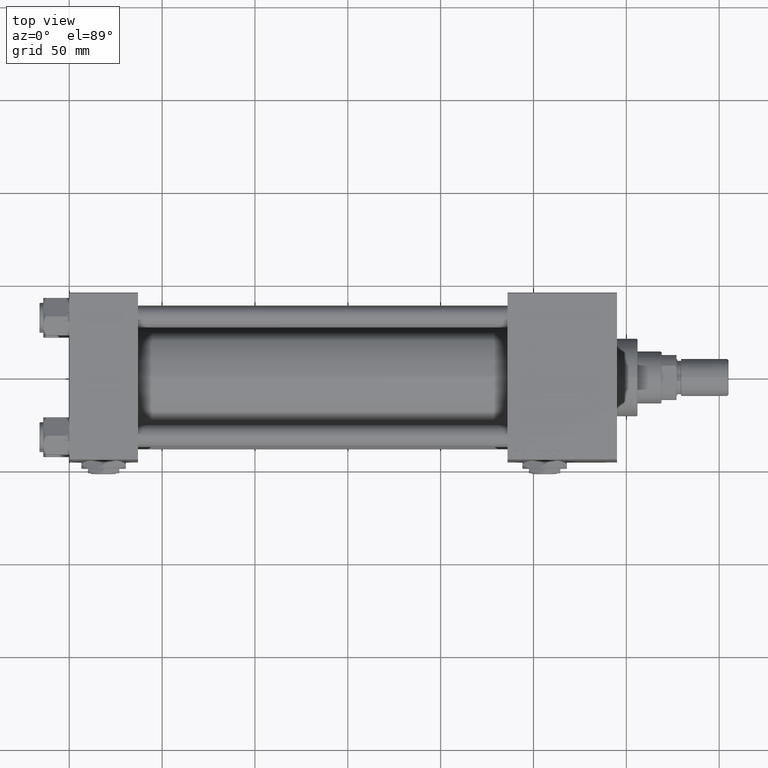
[diagram: clean part render]
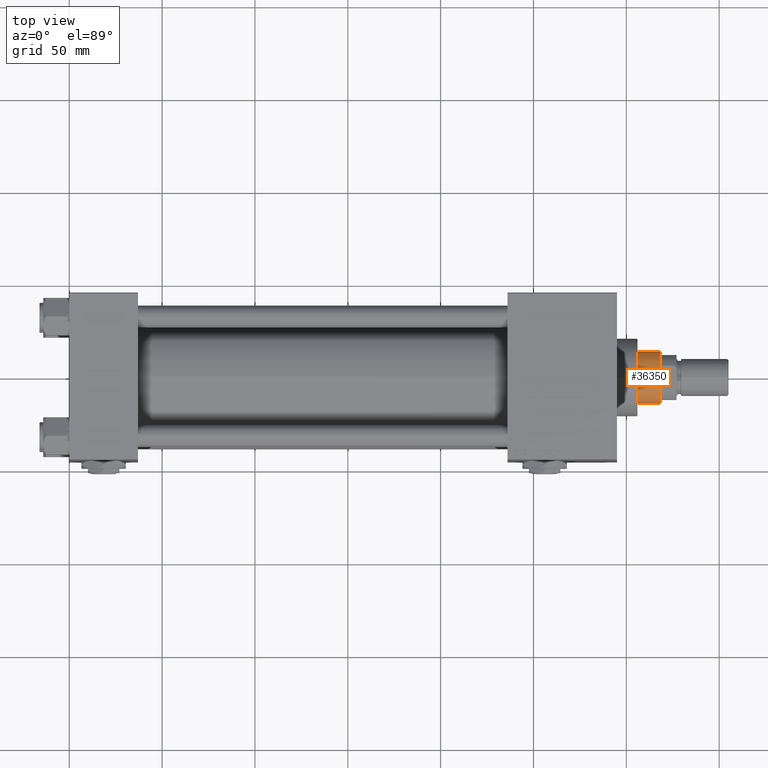
[diagram: same view with one face highlighted and labeled with its STEP entity id]
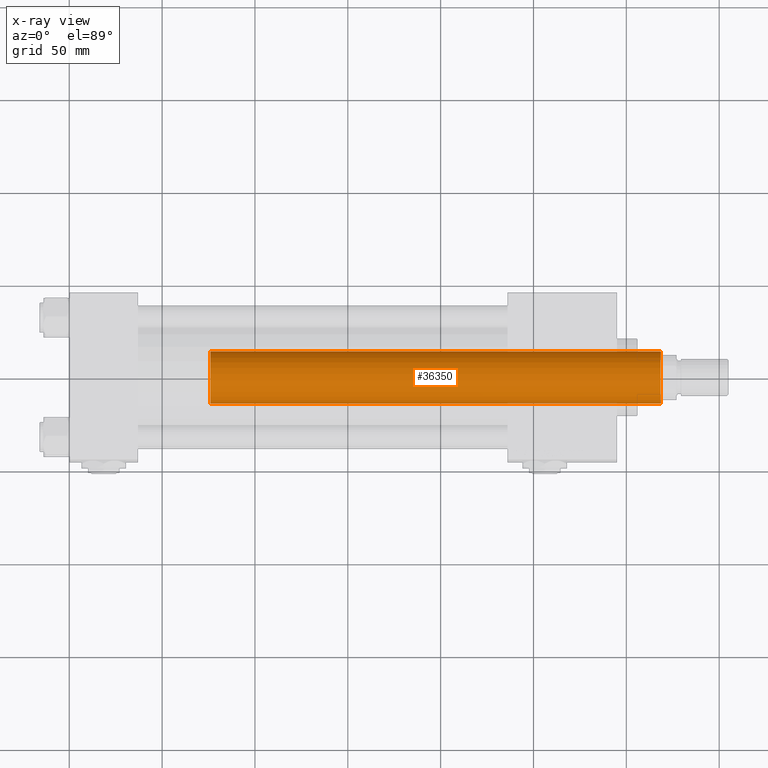
[diagram: x-ray of the same camera — body ghosted, the highlighted face saturated]
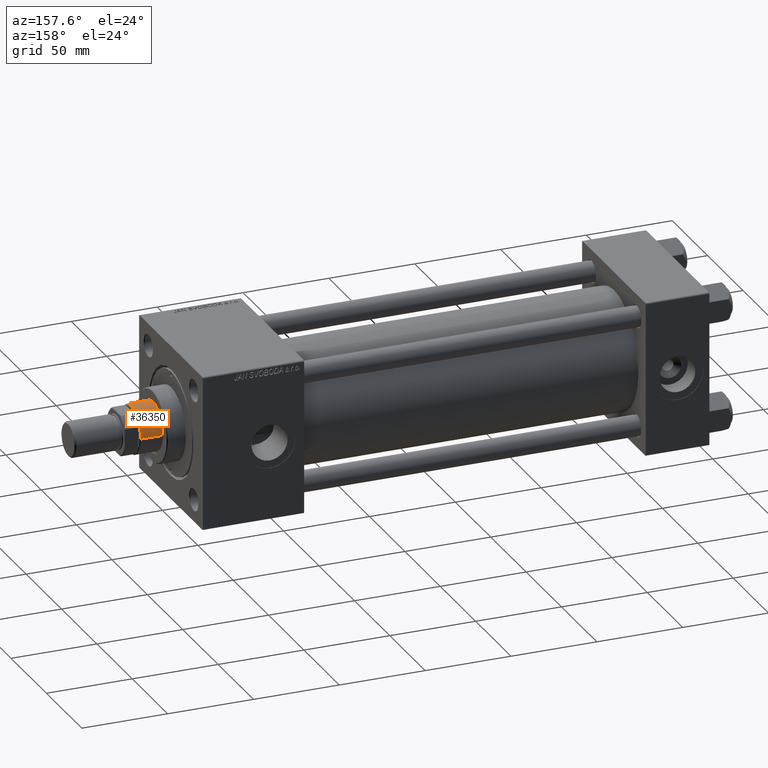
[diagram: same view with one face highlighted and labeled with its STEP entity id]
A machine part, top view. The second image highlights one B-rep face of the part: STEP entity #36350.
The next image is the same camera in x-ray: the body ghosted, the highlighted face saturated — about 1% of this face is hidden behind the body in this view.
A second angle (auxiliary view) of the same face is appended — the face is thin or edge-on in the first view.
In plain terms, the highlighted cylindrical surface (edge-blend (fillet) strip) has radius 14 mm, axis along (-1, 0, 0).
Its self-contained STEP definition (entity closure, byte-faithful):
#512 = CARTESIAN_POINT ( 'NONE',  ( 0.000000000000000000, 0.000000000000000000, 281.4999999999999432 ) ) ;
#3264 = DIRECTION ( 'NONE',  ( 0.000000000000000000, 0.000000000000000000, 1.000000000000000000 ) ) ;
#5314 = ORIENTED_EDGE ( 'NONE', *, *, #34346, .F. ) ;
#6819 = CIRCLE ( 'NONE', #52105, 14.00000000000000178 ) ;
#8891 = VECTOR ( 'NONE', #48813, 1000.000000000000000 ) ;
#9325 = DIRECTION ( 'NONE',  ( 1.000000000000000000, 0.000000000000000000, 0.000000000000000000 ) ) ;
#9505 = VERTEX_POINT ( 'NONE', #30024 ) ;
#11080 = VERTEX_POINT ( 'NONE', #28335 ) ;
#12444 = CARTESIAN_POINT ( 'NONE',  ( 14.00000000000000178, 1.714505518806294835E-15, 282.0000000000000000 ) ) ;
#13857 = EDGE_LOOP ( 'NONE', ( #5314, #30660, #21321, #25159 ) ) ;
#13990 = VECTOR ( 'NONE', #29700, 1000.000000000000000 ) ;
#16203 = LINE ( 'NONE', #12444, #8891 ) ;
#16455 = LINE ( 'NONE', #32233, #13990 ) ;
#16525 = CARTESIAN_POINT ( 'NONE',  ( 0.000000000000000000, 0.000000000000000000, 282.0000000000000000 ) ) ;
#16528 = CARTESIAN_POINT ( 'NONE',  ( 14.00000000000000178, 1.714505518806294835E-15, 39.00000000000000000 ) ) ;
#19608 = DIRECTION ( 'NONE',  ( 1.000000000000000000, 0.000000000000000000, 0.000000000000000000 ) ) ;
#21321 = ORIENTED_EDGE ( 'NONE', *, *, #33441, .T. ) ;
#22671 = AXIS2_PLACEMENT_3D ( 'NONE', #47410, #3264, #19608 ) ;
#25159 = ORIENTED_EDGE ( 'NONE', *, *, #36755, .T. ) ;
#28335 = CARTESIAN_POINT ( 'NONE',  ( -14.00000000000000178, 0.000000000000000000, 281.4999999999999432 ) ) ;
#29700 = DIRECTION ( 'NONE',  ( -0.000000000000000000, -0.000000000000000000, -1.000000000000000000 ) ) ;
#30024 = CARTESIAN_POINT ( 'NONE',  ( 14.00000000000000178, 1.714505518806294835E-15, 281.4999999999999432 ) ) ;
#30660 = ORIENTED_EDGE ( 'NONE', *, *, #47454, .T. ) ;
#32233 = CARTESIAN_POINT ( 'NONE',  ( -14.00000000000000178, 0.000000000000000000, 282.0000000000000000 ) ) ;
#33200 = VERTEX_POINT ( 'NONE', #16528 ) ;
#33441 = EDGE_CURVE ( 'NONE', #11080, #36567, #16455, .T. ) ;
#34346 = EDGE_CURVE ( 'NONE', #9505, #33200, #16203, .T. ) ;
#36350 = ADVANCED_FACE ( 'NONE', ( #49371 ), #48864, .T. ) ;
#36567 = VERTEX_POINT ( 'NONE', #37020 ) ;
#36755 = EDGE_CURVE ( 'NONE', #36567, #33200, #40570, .T. ) ;
#37020 = CARTESIAN_POINT ( 'NONE',  ( -14.00000000000000178, 0.000000000000000000, 39.00000000000000000 ) ) ;
#37595 = DIRECTION ( 'NONE',  ( -0.000000000000000000, -0.000000000000000000, -1.000000000000000000 ) ) ;
#37688 = DIRECTION ( 'NONE',  ( 0.000000000000000000, 0.000000000000000000, -1.000000000000000000 ) ) ;
#40570 = CIRCLE ( 'NONE', #22671, 14.00000000000000178 ) ;
#41355 = DIRECTION ( 'NONE',  ( -1.000000000000000000, 0.000000000000000000, 0.000000000000000000 ) ) ;
#47410 = CARTESIAN_POINT ( 'NONE',  ( 0.000000000000000000, 0.000000000000000000, 39.00000000000000000 ) ) ;
#47454 = EDGE_CURVE ( 'NONE', #9505, #11080, #6819, .T. ) ;
#48813 = DIRECTION ( 'NONE',  ( -0.000000000000000000, -0.000000000000000000, -1.000000000000000000 ) ) ;
#48864 = CYLINDRICAL_SURFACE ( 'NONE', #52550, 14.00000000000000178 ) ;
#49371 = FACE_OUTER_BOUND ( 'NONE', #13857, .T. ) ;
#52105 = AXIS2_PLACEMENT_3D ( 'NONE', #512, #37688, #9325 ) ;
#52550 = AXIS2_PLACEMENT_3D ( 'NONE', #16525, #37595, #41355 ) ;